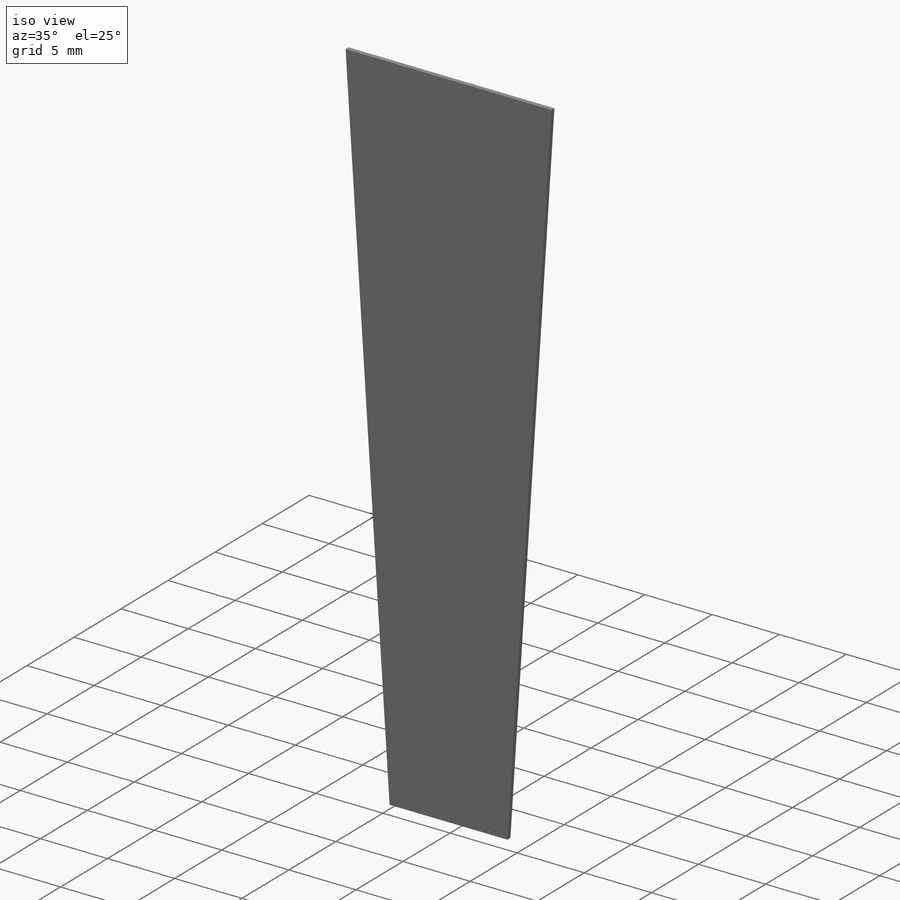
[diagram: iso view]
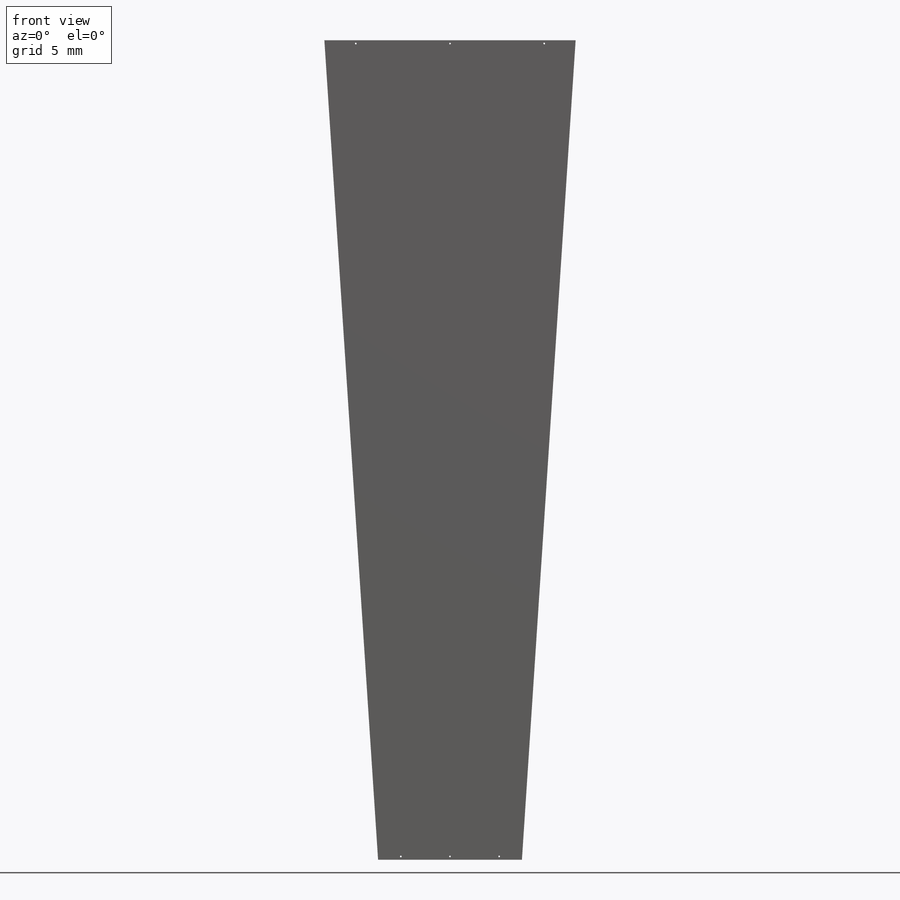
[diagram: front view]
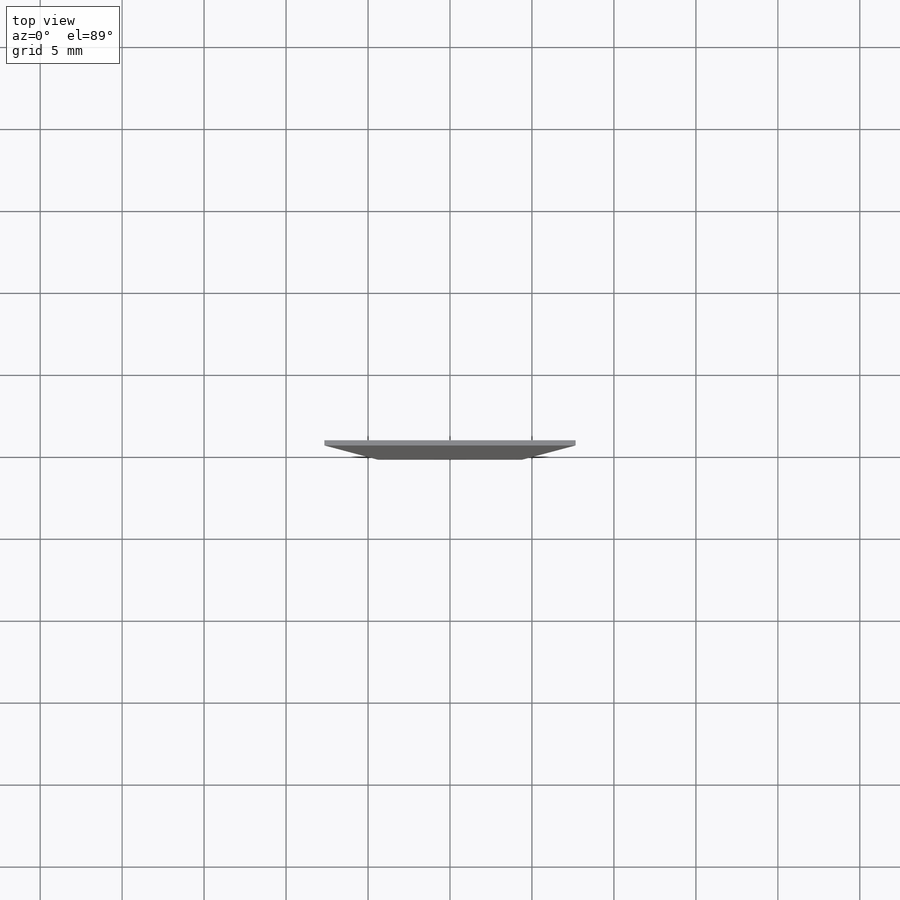
[diagram: top view]
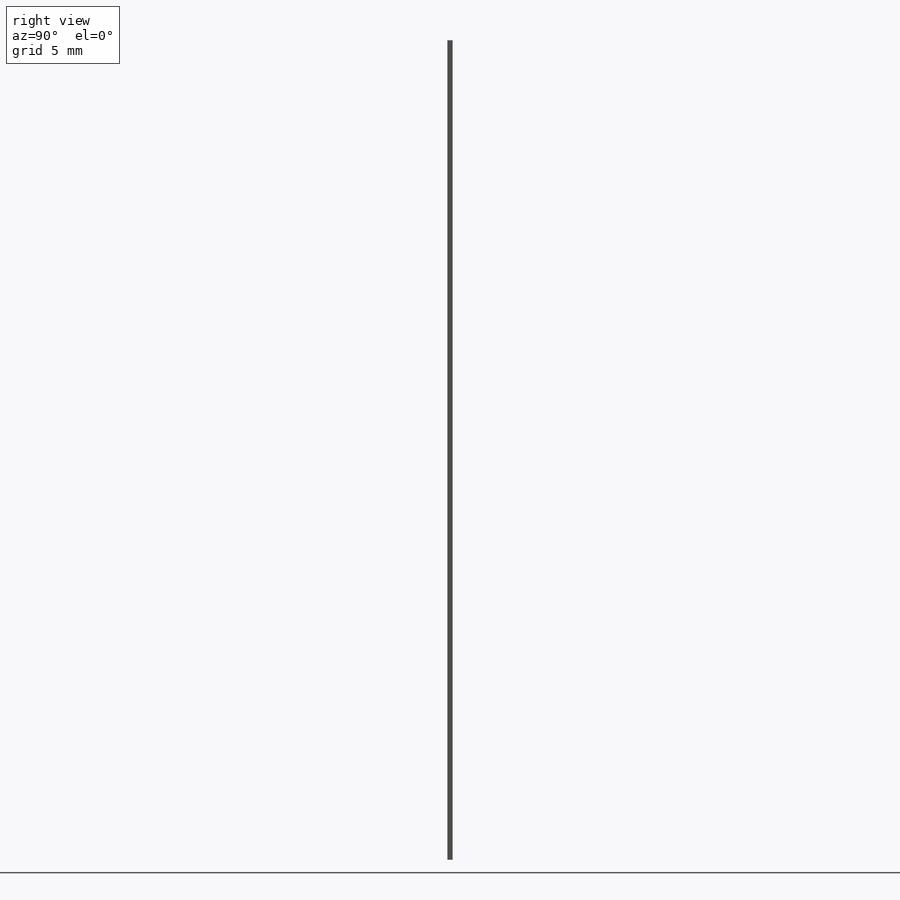
[diagram: right view]
SOLIDWORKS PART (.sldprt)
format: sldprt  version: not decoded by parser v0  size: 408,064 bytes
history: native  units: mm
features: plane x4, sketch x4, cut_extrude x2, material x1, extrude x1, pattern_linear x1 (+13 scaffold rows collapsed)
feature tree (26):
  scaffold x13  (default folders/planes/origin — collapsed)
  material  "Material <not specified>"
  plane  "Plane1"
  plane  "Plane2"
  plane  "Plane3"
  plane  "Plane4"
  sketch  "Sketch1"  dims[c1.D1=24.2mm c1.D2=166.5mm c1.D3=6.6mm c2.D1=24.27mm c2.D2=134.0mm c2.D3=135.0mm c2.D4=6.6mm c3.D2=15.33mm c3.D1=135.0mm c4.D1=7.5deg c4.D2=~43.998003mm c4.D4=1.5mm c4.D3=~93.984103mm c4.D5=49.9861mm c4.D6=~15.326524mm c4.D7=8.774mm c4.D8=1.0mm c4.D9=1.0mm]
  extrude  "Extrude1"  Depth=0.32mm
  sketch  "Sketch2"  dims[c1.D1=0.352mm c2.D1=1.875deg c2.D2=1.0mm c2.D3=~1.473082mm c2.D4=0.02mm c2.D5=2.5mm c3.D1=0.352mm c4.D1=1.875deg c4.D2=1.0mm]
  cut_extrude  "Extrude2"  Depth=0.015mm
  pattern_linear  "LPattern1"  Count1=65 Count2=1 Spacing1=0.075mm Spacing2=1mm
  sketch  "Sketch3"
  sketch  "Sketch4"  dims[c1.D1=~1.669312mm c1.D3=~1.669312mm c1.D4=~1.669312mm c1.D5=0.1mm c2.D1=0.2mm c2.D2=3.0mm c2.D3=5.0mm c2.D4=0.2mm c2.D6=10.0mm c2.D7=126.585mm]
  cut_extrude  "Extrude3"  [1 undecoded]
decode coverage: 6 of 8 modeling features carry decoded parameters
note: ~ marks probable driven/reference dimensions
note: 1 parameter value undecoded
note: suppression state not decoded; provenance and decode notes live in map.json
